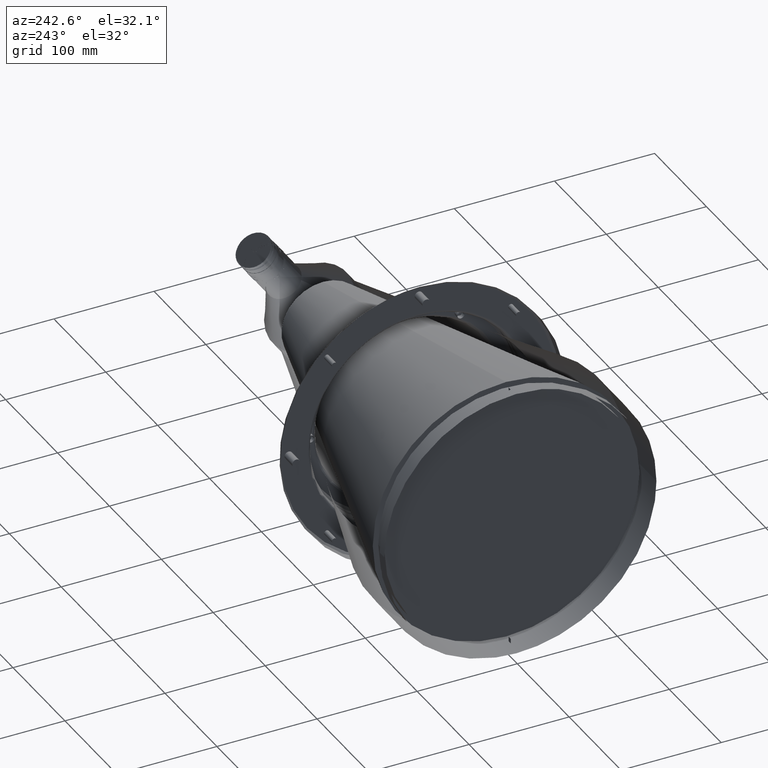
[diagram: clean part render]
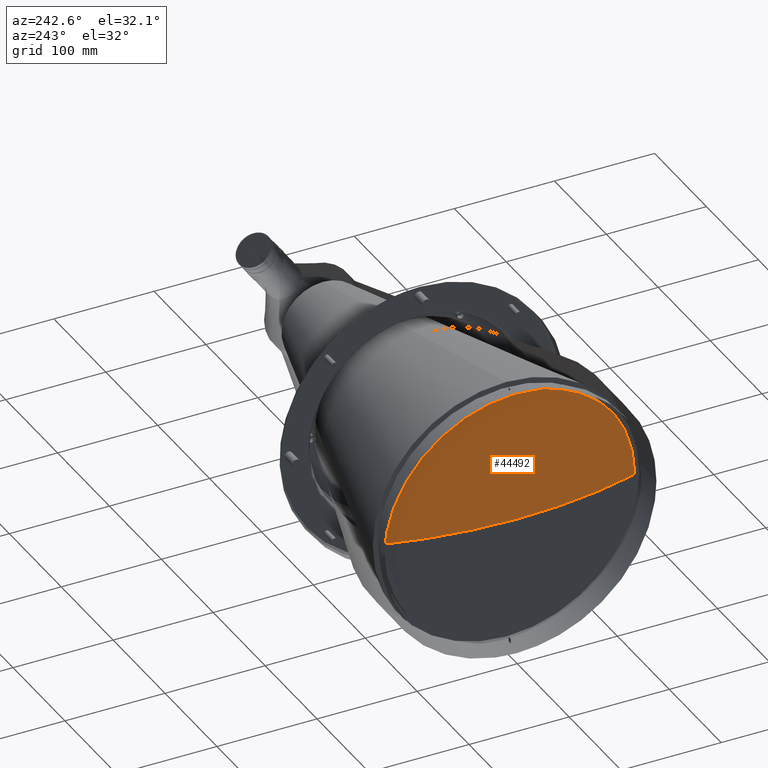
[diagram: same view with one face highlighted and labeled with its STEP entity id]
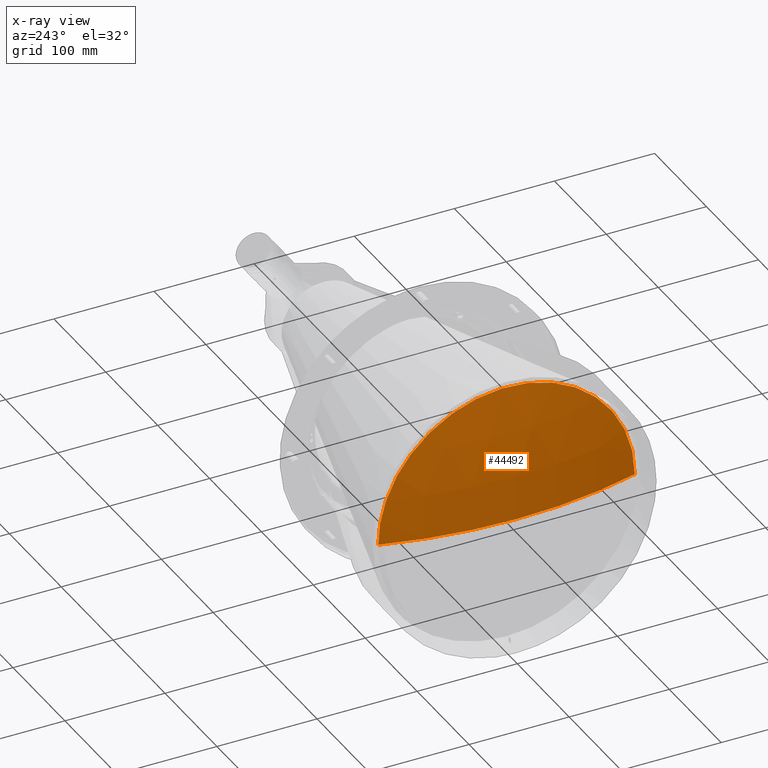
[diagram: x-ray of the same camera — body ghosted, the highlighted face saturated]
A machine part, auxiliary view. The second image highlights one B-rep face of the part: STEP entity #44492.
The next image is the same camera in x-ray: the body ghosted, the highlighted face saturated — about 0% of this face is hidden behind the body in this view.
In plain terms, the highlighted spherical surface has radius 456.634 mm.
Its self-contained STEP definition (entity closure, byte-faithful):
#776 = CARTESIAN_POINT ( 'NONE',  ( 20.83615611460899686, -111.1692278349151195, 64.19740135874326370 ) ) ;
#1033 = CARTESIAN_POINT ( 'NONE',  ( 20.83615611404784929, -128.1000000002813977, -2.650342543544264821E-13 ) ) ;
#1558 = CARTESIAN_POINT ( 'NONE',  ( 20.83615611460899686, 96.50885059060186677, 84.65190674939192661 ) ) ;
#1585 = VERTEX_POINT ( 'NONE', #34564 ) ;
#1682 = EDGE_CURVE ( 'NONE', #1585, #46101, #32343, .T. ) ;
#4793 = CARTESIAN_POINT ( 'NONE',  ( 20.83615611460900041, -96.50885059060207993, 84.65190674939167081 ) ) ;
#5059 = CARTESIAN_POINT ( 'NONE',  ( 20.83615611460900396, -127.2742561426451431, 16.76804347451300004 ) ) ;
#5574 = CARTESIAN_POINT ( 'NONE',  ( 20.83615611460899686, 111.1692278349149916, 64.19740135874344844 ) ) ;
#8002 = AXIS2_PLACEMENT_3D ( 'NONE', #8951, #45948, #17247 ) ;
#8289 = VERTEX_POINT ( 'NONE', #52839 ) ;
#8824 = CARTESIAN_POINT ( 'NONE',  ( 20.83615611460900396, -121.5574339979536944, 41.27582583619572887 ) ) ;
#8951 = CARTESIAN_POINT ( 'NONE',  ( 459.1340000009560072, 2.199129767177509752E-11, -4.169997680492089905E-11 ) ) ;
#9086 = CARTESIAN_POINT ( 'NONE',  ( 20.83615611460900041, -8.384125394267920584, 128.1000000000003070 ) ) ;
#9343 = CARTESIAN_POINT ( 'NONE',  ( 20.83615611460900752, -78.13969234087907978, 101.8532868369972562 ) ) ;
#9604 = CARTESIAN_POINT ( 'NONE',  ( 20.83615611460899686, -115.1405022314383189, 56.76766953573999785 ) ) ;
#9872 = CARTESIAN_POINT ( 'NONE',  ( 20.83615611460900041, 16.76804347451317412, 127.2742561426454273 ) ) ;
#12635 = ORIENTED_EDGE ( 'NONE', *, *, #1682, .F. ) ;
#13107 = CARTESIAN_POINT ( 'NONE',  ( 20.83615611460900752, 56.76766953574011865, 115.1405022314384183 ) ) ;
#13632 = CARTESIAN_POINT ( 'NONE',  ( 20.83615611460900041, -41.27582583619611256, 121.5574339979537513 ) ) ;
#14175 = CARTESIAN_POINT ( 'NONE',  ( 459.1340000009560072, 2.199129767177509752E-11, -4.169997680492089905E-11 ) ) ;
#14439 = CIRCLE ( 'NONE', #33302, 456.6340000009929554 ) ;
#16867 = CARTESIAN_POINT ( 'NONE',  ( 20.83615611460900396, -33.21409702601899028, 124.0029326966628105 ) ) ;
#17132 = CARTESIAN_POINT ( 'NONE',  ( 20.83615611460900041, -56.76766953574034602, 115.1405022314383331 ) ) ;
#17247 = DIRECTION ( 'NONE',  ( -4.814012072585549445E-14, 1.000000000000000000, 4.394903013962801960E-27 ) ) ;
#18243 = CARTESIAN_POINT ( 'NONE',  ( 2.499999999963031794, 5.592153664654997297E-14, 3.344770238137090055E-24 ) ) ;
#18869 = CARTESIAN_POINT ( 'NONE',  ( 459.1340000009560072, 2.199129767177509752E-11, -4.169997680492089905E-11 ) ) ;
#20740 = EDGE_LOOP ( 'NONE', ( #25675, #28586, #12635 ) ) ;
#21145 = CARTESIAN_POINT ( 'NONE',  ( 20.83615611460900041, -64.19740135874356213, 111.1692278349150769 ) ) ;
#21408 = CARTESIAN_POINT ( 'NONE',  ( 20.83615611460900041, 121.5574339979536376, 41.27582583619600598 ) ) ;
#21538 = EDGE_CURVE ( 'NONE', #8289, #1585, #25676, .T. ) ;
#21666 = CARTESIAN_POINT ( 'NONE',  ( 20.83615611460900396, 84.65190674939172766, 96.50885059060209414 ) ) ;
#22190 = CARTESIAN_POINT ( 'NONE',  ( 20.83615611460899686, -101.8532868369973130, 78.13969234087878135 ) ) ;
#22342 = DIRECTION ( 'NONE',  ( -1.000000000000000000, 0.000000000000000000, 9.132035022541809796E-14 ) ) ;
#22615 = EDGE_CURVE ( 'NONE', #8289, #46101, #14439, .T. ) ;
#22724 = DIRECTION ( 'NONE',  ( 9.132035022541809796E-14, -1.945801560355172157E-30, 1.000000000000000000 ) ) ;
#24763 = SPHERICAL_SURFACE ( 'NONE', #8002, 456.6340000009929554 ) ;
#25415 = CARTESIAN_POINT ( 'NONE',  ( 20.83615611460900396, 64.19740135874333475, 111.1692278349152758 ) ) ;
#25675 = ORIENTED_EDGE ( 'NONE', *, *, #21538, .F. ) ;
#25676 = B_SPLINE_CURVE_WITH_KNOTS ( 'NONE', 3,
 ( #1033, #50394, #5059, #41531, #8824, #9604, #776, #22190, #4793, #46083, #9343, #21145, #17132, #13632, #16867, #33240, #9086, #25948, #9872, #33510, #49878, #13107, #25415, #29458, #21666, #1558, #45817, #5574, #26216, #21408, #37787, #42330, #30248, #38559 ),
 .UNSPECIFIED., .F., .F.,
 ( 4, 2, 2, 2, 2, 2, 2, 2, 2, 2, 2, 2, 2, 2, 2, 2, 4 ),
 ( 0.000000000000000000, 0.06249999999999991673, 0.1249999999999998335, 0.1874999999999998057, 0.2499999999999997780, 0.3124999999999997224, 0.3749999999999997224, 0.4374999999999996669, 0.4999999999999996669, 0.5624999999999996669, 0.6249999999999996669, 0.6874999999999997780, 0.7499999999999997780, 0.8124999999999997780, 0.8749999999999997780, 0.9374999999999998890, 1.000000000000000000 ),
 .UNSPECIFIED. ) ;
#25948 = CARTESIAN_POINT ( 'NONE',  ( 20.83615611460900041, 8.384125394267632814, 128.1000000000003638 ) ) ;
#26216 = CARTESIAN_POINT ( 'NONE',  ( 20.83615611460900396, 115.1405022314382194, 56.76766953574026786 ) ) ;
#28586 = ORIENTED_EDGE ( 'NONE', *, *, #22615, .T. ) ;
#29458 = CARTESIAN_POINT ( 'NONE',  ( 20.83615611460900752, 78.13969234087883819, 101.8532868369974409 ) ) ;
#30248 = CARTESIAN_POINT ( 'NONE',  ( 20.83615611460900752, 128.1000000000000512, 8.384125394267794462 ) ) ;
#32343 = CIRCLE ( 'NONE', #51190, 456.6340000009930122 ) ;
#33240 = CARTESIAN_POINT ( 'NONE',  ( 20.83615611460900041, -16.76804347451346189, 127.2742561426453989 ) ) ;
#33302 = AXIS2_PLACEMENT_3D ( 'NONE', #18869, #47308, #22342 ) ;
#33510 = CARTESIAN_POINT ( 'NONE',  ( 20.83615611460899686, 33.21409702601871317, 124.0029326966628389 ) ) ;
#34564 = CARTESIAN_POINT ( 'NONE',  ( 20.83615611382499822, 128.1000000002291870, -8.372320990154070366E-13 ) ) ;
#36867 = FACE_OUTER_BOUND ( 'NONE', #20740, .T. ) ;
#37787 = CARTESIAN_POINT ( 'NONE',  ( 20.83615611460900752, 124.0029326966625973, 33.21409702601889080 ) ) ;
#38559 = CARTESIAN_POINT ( 'NONE',  ( 20.83615611382499822, 128.1000000002291870, -8.372320990154070366E-13 ) ) ;
#39096 = DIRECTION ( 'NONE',  ( 1.000000000000000000, 0.000000000000000000, -9.132035022541808533E-14 ) ) ;
#41531 = CARTESIAN_POINT ( 'NONE',  ( 20.83615611460899686, -124.0029326966626257, 33.21409702601855685 ) ) ;
#42330 = CARTESIAN_POINT ( 'NONE',  ( 20.83615611460899686, 127.2742561426451431, 16.76804347451330912 ) ) ;
#44492 = ADVANCED_FACE ( 'NONE', ( #36867 ), #24763, .F. ) ;
#45817 = CARTESIAN_POINT ( 'NONE',  ( 20.83615611460900396, 101.8532868369972135, 78.13969234087898030 ) ) ;
#45948 = DIRECTION ( 'NONE',  ( -9.132035022541809796E-14, -1.269670616230546325E-30, -1.000000000000000000 ) ) ;
#46083 = CARTESIAN_POINT ( 'NONE',  ( 20.83615611460900752, -84.65190674939194082, 96.50885059060186677 ) ) ;
#46101 = VERTEX_POINT ( 'NONE', #18243 ) ;
#47308 = DIRECTION ( 'NONE',  ( -9.132035022541809796E-14, 1.224646799147372682E-16, -1.000000000000000000 ) ) ;
#49878 = CARTESIAN_POINT ( 'NONE',  ( 20.83615611460900041, 41.27582583619583545, 121.5574339979538649 ) ) ;
#50394 = CARTESIAN_POINT ( 'NONE',  ( 20.83615611460899686, -128.0999999999999943, 8.384125394267488929 ) ) ;
#51190 = AXIS2_PLACEMENT_3D ( 'NONE', #14175, #22724, #39096 ) ;
#52839 = CARTESIAN_POINT ( 'NONE',  ( 20.83615611404784929, -128.1000000002813977, -2.650342543544264821E-13 ) ) ;